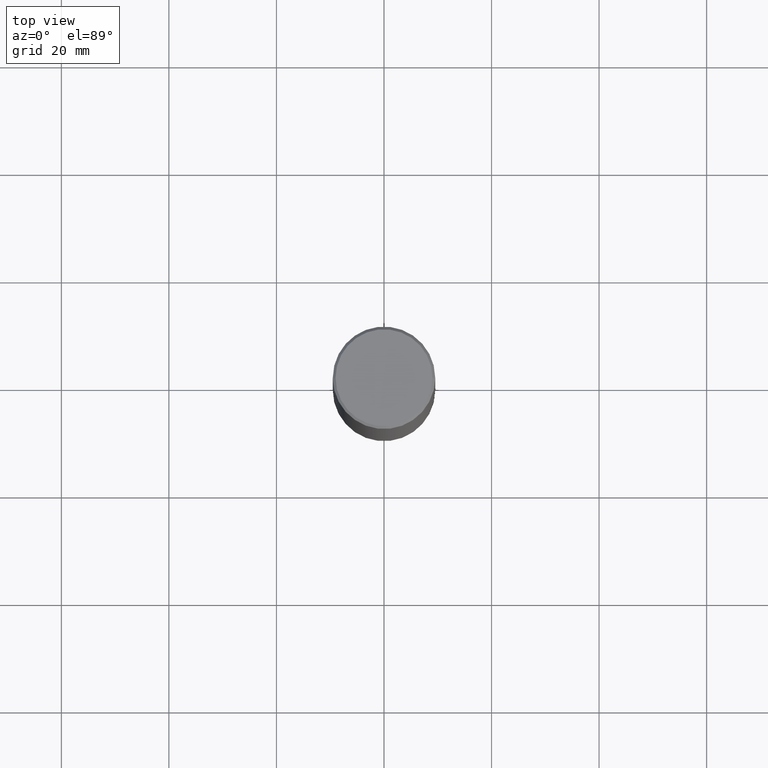
[diagram: clean part render]
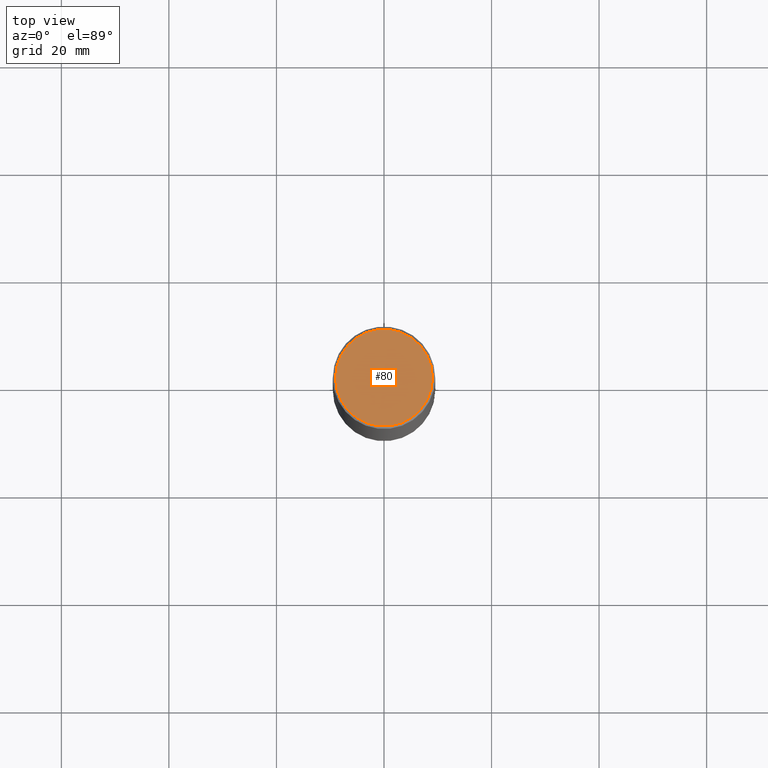
[diagram: same view with one face highlighted and labeled with its STEP entity id]
A machine part, top view. The second image highlights one B-rep face of the part: STEP entity #80.
In plain terms, the highlighted planar face has unit normal (0, -0, -1).
Its self-contained STEP definition (entity closure, byte-faithful):
#52 = DIRECTION ( 'NONE',  ( 2.438088387897960049E-29, -3.491481338843145188E-15, -1.000000000000000000 ) ) ;
#54 = DIRECTION ( 'NONE',  ( 1.000000000000000000, -6.982962677686266711E-15, 4.878367520217860717E-29 ) ) ;
#59 = DIRECTION ( 'NONE',  ( -2.445468806185136597E-29, 3.491481338843145583E-15, 1.000000000000000000 ) ) ;
#66 = EDGE_CURVE ( 'NONE', #247, #328, #320, .T. ) ;
#80 = ADVANCED_FACE ( 'NONE', ( #142 ), #111, .F. ) ;
#111 = PLANE ( 'NONE',  #291 ) ;
#112 = ORIENTED_EDGE ( 'NONE', *, *, #227, .T. ) ;
#113 = EDGE_LOOP ( 'NONE', ( #245, #112 ) ) ;
#142 = FACE_OUTER_BOUND ( 'NONE', #113, .T. ) ;
#159 = CARTESIAN_POINT ( 'NONE',  ( 0.3550000000000001488, -2.538996582575041837E-15, -1.622034746237980703E-16 ) ) ;
#182 = CARTESIAN_POINT ( 'NONE',  ( 2.478951750578625787E-15, 0.3550000000000001488, -1.320577612601225142E-15 ) ) ;
#185 = DIRECTION ( 'NONE',  ( -1.000000000000000000, 6.982962677686265922E-15, -4.876176775795935793E-29 ) ) ;
#227 = EDGE_CURVE ( 'NONE', #328, #247, #331, .T. ) ;
#245 = ORIENTED_EDGE ( 'NONE', *, *, #66, .T. ) ;
#247 = VERTEX_POINT ( 'NONE', #312 ) ;
#278 = DIRECTION ( 'NONE',  ( -2.445468806185136597E-29, 3.491481338843145583E-15, 1.000000000000000000 ) ) ;
#291 = AXIS2_PLACEMENT_3D ( 'NONE', #182, #52, #185 ) ;
#302 = AXIS2_PLACEMENT_3D ( 'NONE', #404, #278, #376 ) ;
#312 = CARTESIAN_POINT ( 'NONE',  ( -0.3550000000000001488, 2.513866563967055858E-15, -1.622034746238331006E-16 ) ) ;
#320 = CIRCLE ( 'NONE', #302, 0.3550000000000001488 ) ;
#328 = VERTEX_POINT ( 'NONE', #159 ) ;
#331 = CIRCLE ( 'NONE', #354, 0.3550000000000001488 ) ;
#354 = AXIS2_PLACEMENT_3D ( 'NONE', #408, #59, #54 ) ;
#376 = DIRECTION ( 'NONE',  ( 1.000000000000000000, -6.982962677686266711E-15, 4.878367520217860717E-29 ) ) ;
#404 = CARTESIAN_POINT ( 'NONE',  ( 3.966635374473835042E-45, -5.663304047445699634E-31, -1.622034746238156224E-16 ) ) ;
#408 = CARTESIAN_POINT ( 'NONE',  ( 3.966635374473835042E-45, -5.663304047445699634E-31, -1.622034746238156224E-16 ) ) ;